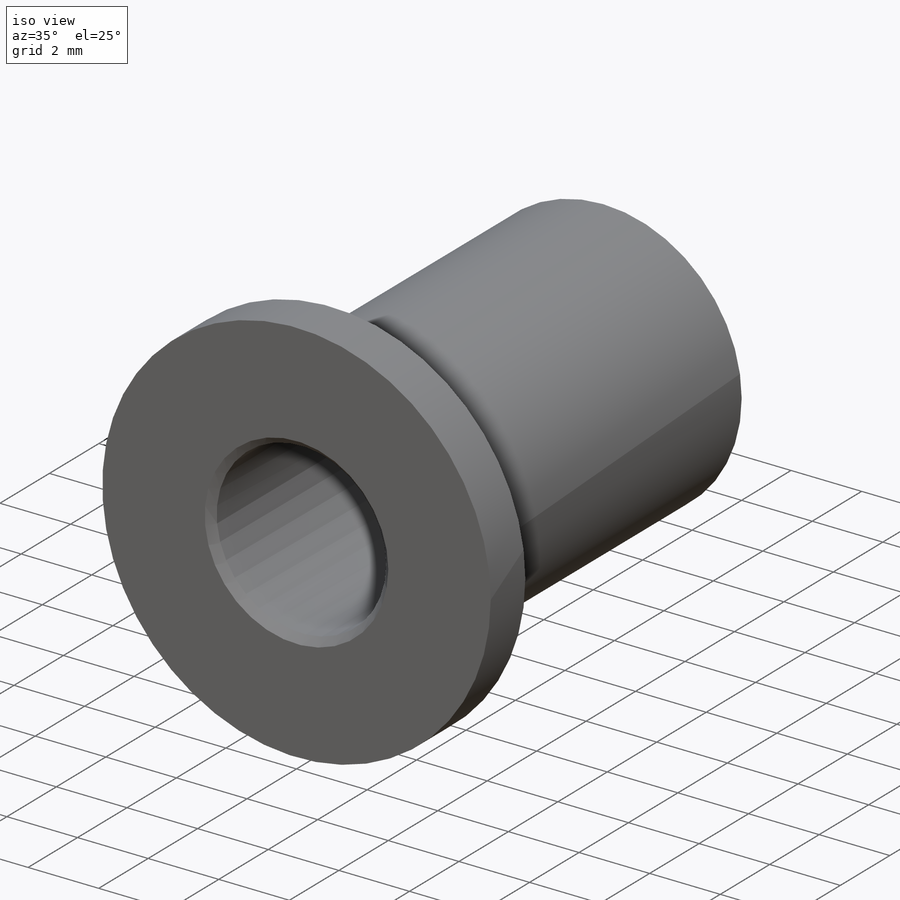
[diagram: iso view]
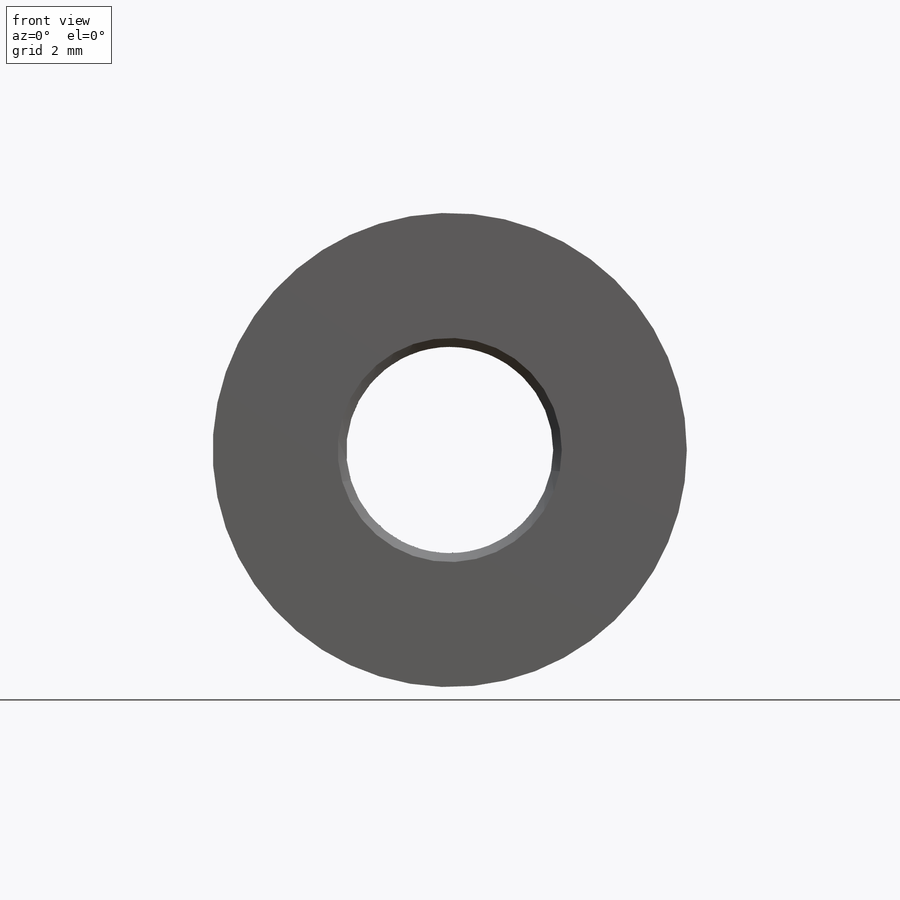
[diagram: front view]
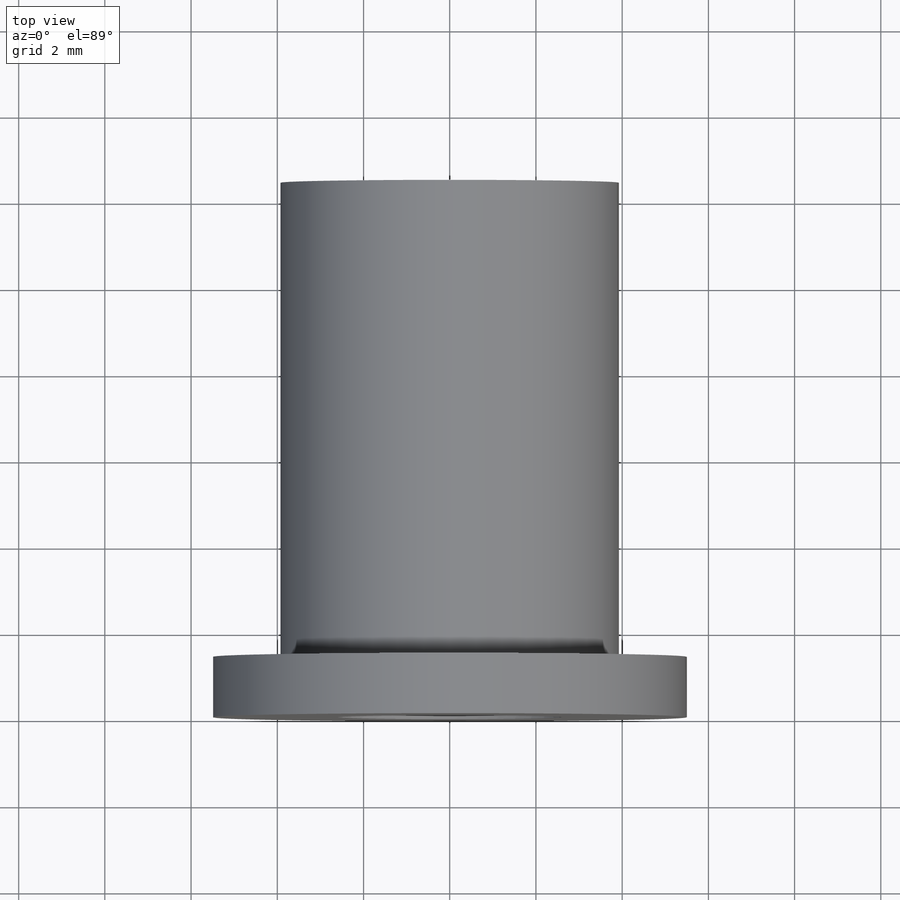
[diagram: top view]
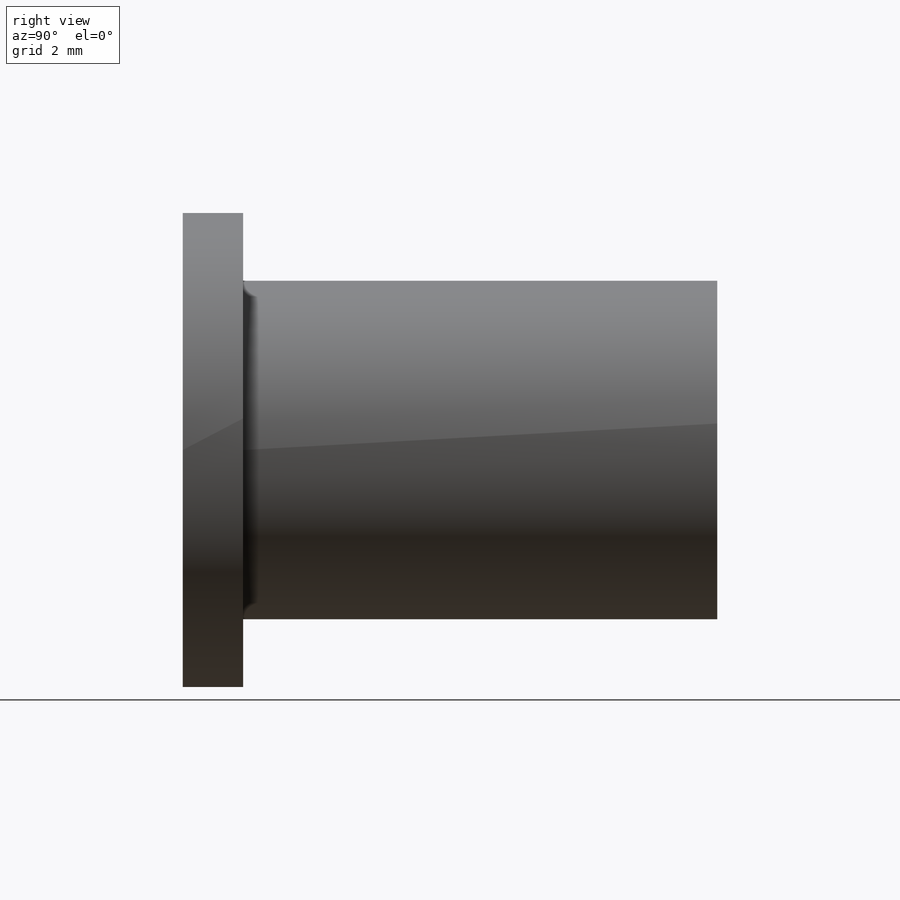
[diagram: right view]
SOLIDWORKS PART (.sldprt)
format: sldprt  version: not decoded by parser v0  size: 197,632 bytes
history: native  units: mm
features: sketch x3, extrude x2, material x1, cut_extrude x1, chamfer x1 (+13 scaffold rows collapsed)
feature tree (21):
  scaffold x13  (default folders/planes/origin — collapsed)
  material  "Aluminum Bronze"
  sketch  "Sketch1"  dims[D1=11.0mm]
  extrude  "Extrude1"  Depth=1.4mm
  sketch  "Sketch2"  dims[D1=7.85mm]
  extrude  "Extrude2"  Depth=11mm
  sketch  "Sketch4"  dims[D1=4.8mm]
  cut_extrude  "Cut-Extrude1"  [1 undecoded]
  chamfer  "Chamfer1"  Distance=0.2mm Angle=45deg
decode coverage: 6 of 7 modeling features carry decoded parameters
note: 1 parameter value undecoded
note: suppression state not decoded; provenance and decode notes live in map.json
